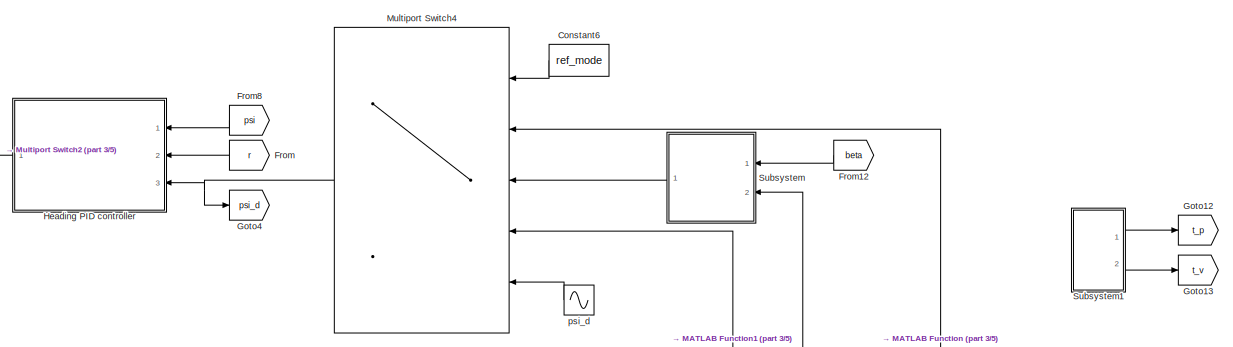
[diagram: root canvas - part 1/5, top center region]
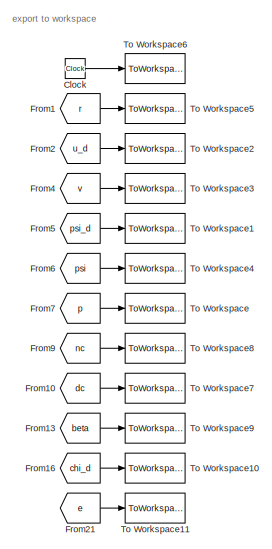
[diagram: root canvas - part 2/5, middle left region]
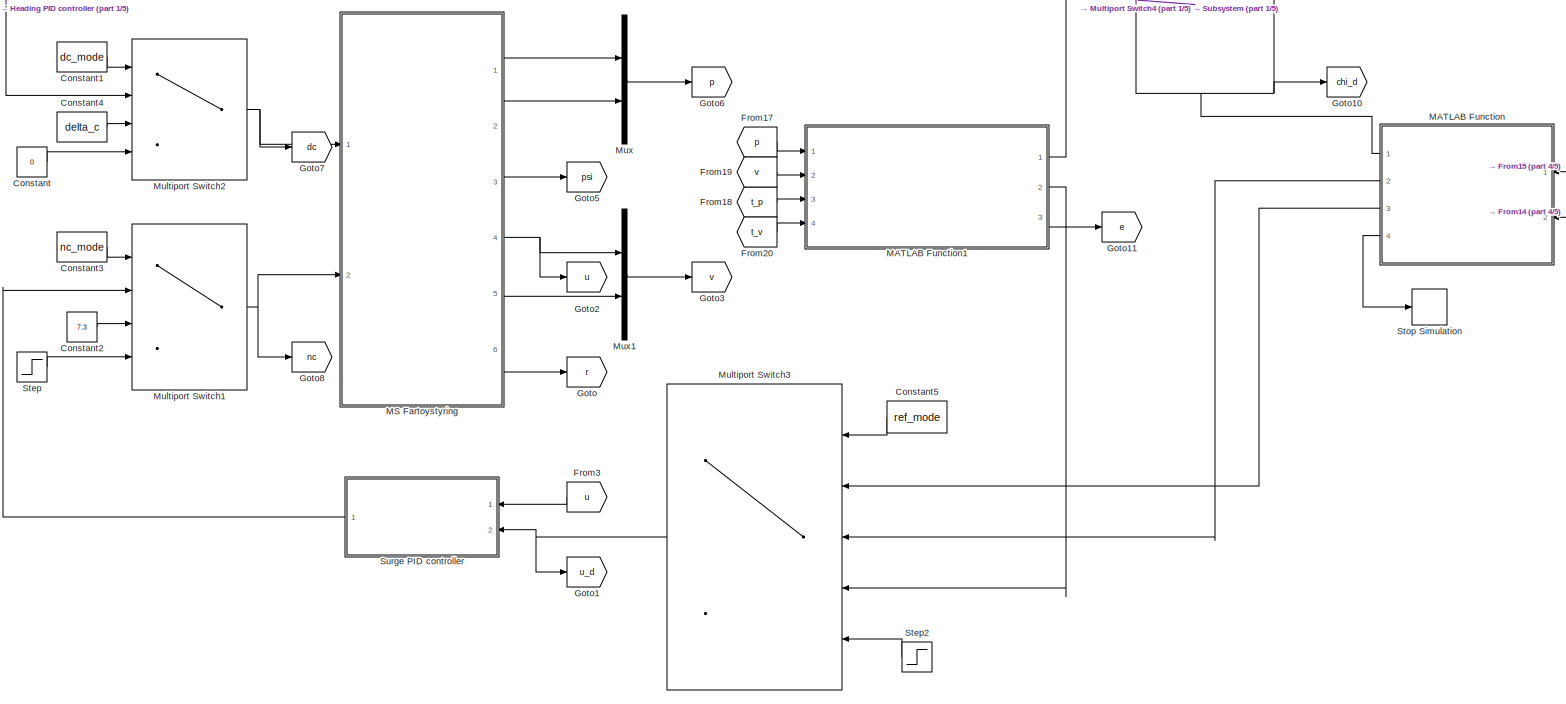
[diagram: root canvas - part 3/5, full width, middle band]
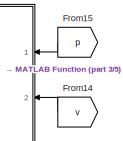
[diagram: root canvas - part 4/5, middle right region]
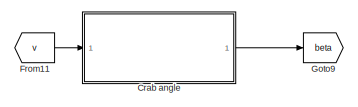
[diagram: root canvas - part 5/5, bottom center region]
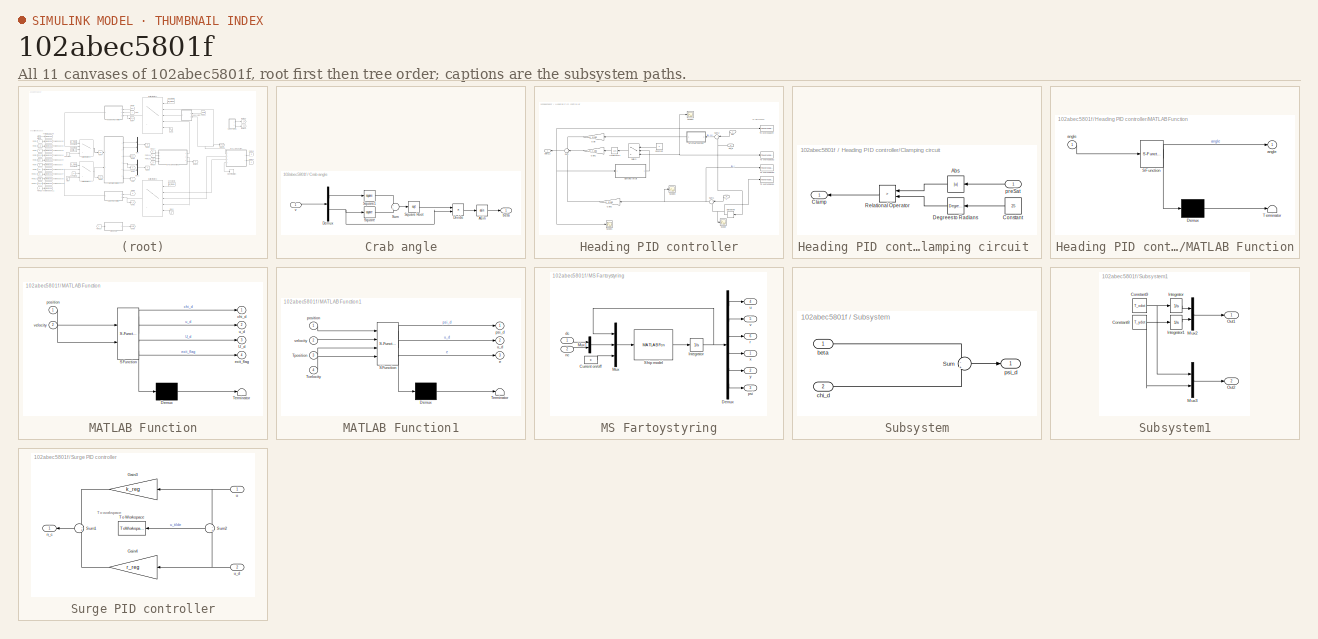
[diagram: thumbnail index - all 11 canvases of the model, root first then tree order]
MODEL slx_102abec5801f
KIND model
CONFIG AbsTol = auto
CONFIG EnableMultiTasking = on
CONFIG FixedStep = auto
CONFIG MaxStep = auto
CONFIG MinStep = auto
CONFIG RelTol = 1e-3
CONFIG SampleTimeConstraint = Unconstrained
CONFIG Solver = ode45
CONFIG SolverName = ode45
CONFIG StartTime = tstart
CONFIG StopTime = tstop
BLOCK [Clock] Clock
BLOCK [Constant] Constant
  Value = 0
BLOCK [Constant] Constant1
  Value = dc_mode
BLOCK [Constant] Constant2
  Value = 7.3
BLOCK [Constant] Constant3
  Value = nc_mode
BLOCK [Constant] Constant4
  Value = delta_c
BLOCK [Constant] Constant5
  Value = ref_mode
BLOCK [Constant] Constant6
  Value = ref_mode
BLOCK [SubSystem] Crab angle
  Ports = [1, 1]
  RequestExecContextInheritance = off
BLOCK [Trigonometry] Crab angle/Asin
  Operator = asin
  Ports = [1, 1]
BLOCK [Demux] Crab angle/Demux
  DisplayOption = bar
  Outputs = 2
  Ports = [1, 2]
BLOCK [Product] Crab angle/Divide
  InputSameDT = off
  Inputs = /*
  OutDataTypeStr = Inherit: Inherit via internal rule
  Ports = [2, 1]
  RndMeth = Floor
  SaturateOnIntegerOverflow = off
BLOCK [Math] Crab angle/Square
  Operator = square
  Ports = [1, 1]
BLOCK [Sqrt] Crab angle/Square Root
BLOCK [Math] Crab angle/Square1
  Operator = square
  Ports = [1, 1]
BLOCK [Sum] Crab angle/Sum
  IconShape = round
  InputSameDT = off
  Inputs = +|+
  OutDataTypeStr = Inherit: Inherit via internal rule
  Ports = [2, 1]
  SaturateOnIntegerOverflow = off
BLOCK [Outport] Crab angle/beta 
  IconDisplay = Port number
BLOCK [Inport] Crab angle/v
  IconDisplay = Port number
BLOCK [From] From
  GotoTag = r
BLOCK [From] From1
  GotoTag = r
BLOCK [From] From10
  GotoTag = dc
BLOCK [From] From11
  GotoTag = v
BLOCK [From] From12
  GotoTag = beta
BLOCK [From] From13
  GotoTag = beta
BLOCK [From] From14
  GotoTag = v
BLOCK [From] From15
  GotoTag = p
BLOCK [From] From16
  GotoTag = chi_d
BLOCK [From] From17
  GotoTag = p
BLOCK [From] From18
  GotoTag = t_p
BLOCK [From] From19
  GotoTag = v
BLOCK [From] From2
  GotoTag = u_d
BLOCK [From] From20
  GotoTag = t_v
BLOCK [From] From21
  GotoTag = e
BLOCK [From] From3
  GotoTag = u
BLOCK [From] From4
  GotoTag = v
BLOCK [From] From5
  GotoTag = psi_d
BLOCK [From] From6
  GotoTag = psi
BLOCK [From] From7
  GotoTag = p
BLOCK [From] From8
  GotoTag = psi
BLOCK [From] From9
  GotoTag = nc
BLOCK [Goto] Goto
  GotoTag = r
BLOCK [Goto] Goto1
  GotoTag = u_d
BLOCK [Goto] Goto10
  GotoTag = chi_d
BLOCK [Goto] Goto11
  GotoTag = e
BLOCK [Goto] Goto12
  GotoTag = t_p
BLOCK [Goto] Goto13
  GotoTag = t_v
BLOCK [Goto] Goto2
  GotoTag = u
BLOCK [Goto] Goto3
  GotoTag = v
BLOCK [Goto] Goto4
  GotoTag = psi_d
BLOCK [Goto] Goto5
  GotoTag = psi
BLOCK [Goto] Goto6
  GotoTag = p
BLOCK [Goto] Goto7
  GotoTag = dc
BLOCK [Goto] Goto8
  GotoTag = nc
BLOCK [Goto] Goto9
  GotoTag = beta
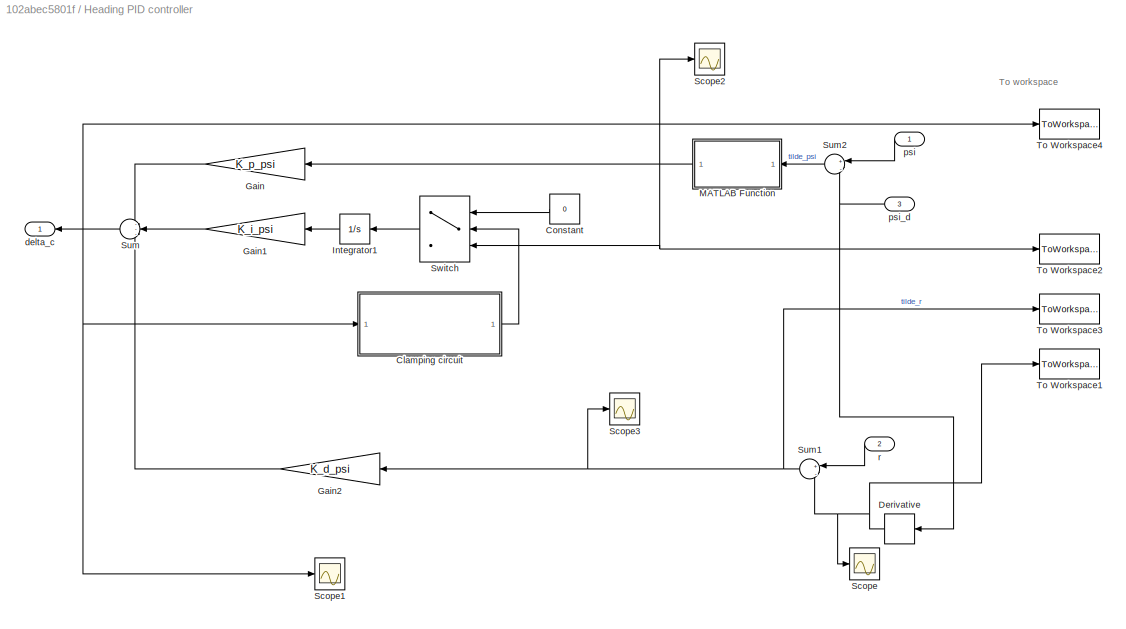
BLOCK [SubSystem] Heading PID controller
  Ports = [3, 1]
  RequestExecContextInheritance = off
BLOCK [SubSystem] Heading PID controller/Clamping circuit 
  Ports = [1, 1]
  RequestExecContextInheritance = off
BLOCK [Abs] Heading PID controller/Clamping circuit /Abs
  SaturateOnIntegerOverflow = off
BLOCK [Outport] Heading PID controller/Clamping circuit /Clamp
  IconDisplay = Port number
BLOCK [Constant] Heading PID controller/Clamping circuit /Constant
  Value = 25
BLOCK [Reference] Heading PID controller/Clamping circuit /Degrees to Radians  REF=simulink_extras/Transformations/Degrees to
Radians
  Ports = [1, 1]
  SourceBlock = simulink_extras/Transformations/Degrees to\nRadians
  SourceProductBaseCode = SL
  SourceProductName = Simulink
  SourceType = DegreesToRadians
BLOCK [RelationalOperator] Heading PID controller/Clamping circuit /Relational Operator
  InputSameDT = off
  Operator = >
  OutDataTypeStr = boolean
  Ports = [2, 1]
  RndMeth = Simplest
  ZeroCross = off
BLOCK [Inport] Heading PID controller/Clamping circuit /preSat
  IconDisplay = Port number
BLOCK [Constant] Heading PID controller/Constant
  Value = 0
BLOCK [Derivative] Heading PID controller/Derivative
BLOCK [Gain] Heading PID controller/Gain
  Gain = K_p_psi
  OutDataTypeStr = Inherit: Inherit via internal rule
  ParamDataTypeStr = Inherit: Inherit via internal rule
  SaturateOnIntegerOverflow = off
BLOCK [Gain] Heading PID controller/Gain1
  Gain = K_i_psi
  OutDataTypeStr = Inherit: Inherit via internal rule
  ParamDataTypeStr = Inherit: Inherit via internal rule
  SaturateOnIntegerOverflow = off
BLOCK [Gain] Heading PID controller/Gain2
  Gain = K_d_psi
  OutDataTypeStr = Inherit: Inherit via internal rule
  ParamDataTypeStr = Inherit: Inherit via internal rule
  SaturateOnIntegerOverflow = off
BLOCK [Integrator] Heading PID controller/Integrator1
  Ports = [1, 1]
BLOCK [SubSystem] Heading PID controller/MATLAB Function
  ErrorFcn = Stateflow.Translate.translate
  PermitHierarchicalResolution = ExplicitOnly
  Ports = [1, 1]
  RequestExecContextInheritance = off
  SFBlockType = MATLAB Function
  TreatAsAtomicUnit = on
BLOCK [Demux] Heading PID controller/MATLAB Function/ Demux 
  Outputs = 1
  Ports = [1, 1]
BLOCK [S-Function] Heading PID controller/MATLAB Function/ SFunction 
  EnableBusSupport = on
  FunctionName = sf_sfun
  PortCounts = [1 2]
  Ports = [1, 2]
  SFcnIsStateOwnerBlock = off
  SFunctionDeploymentMode = off
  Tag = Stateflow S-Function MSFartoystyring 1
BLOCK [Terminator] Heading PID controller/MATLAB Function/ Terminator 
BLOCK [Outport] Heading PID controller/MATLAB Function/angle
  IconDisplay = Port number
BLOCK [Inport] Heading PID controller/MATLAB Function/angle 
  IconDisplay = Port number
BLOCK [Scope] Heading PID controller/Scope
  Floating = off
  NumInputPorts = 1
  Ports = [1]
  ScopeSpecificationString = Simulink.scopes.TimeScopeBlockCfg('CurrentConfiguration', extmgr.ConfigurationSet(extmgr.Configuration('Core','General UI',true),extmgr.Configuration('Core','Source UI',true),extmgr.Configuration('Sources','WiredSimulink',true,'DataLoggingVariableName','ScopeData3'),extmgr.Configuration('Visuals','Time Domain',true,'SerializedDisplays',{struct('MinYLimReal','-1.00000','MaxYLimReal','1.00000','YLab...<+1369ch>
BLOCK [Scope] Heading PID controller/Scope1
  Floating = off
  NumInputPorts = 1
  Ports = [1]
  ScopeSpecificationString = Simulink.scopes.TimeScopeBlockCfg('CurrentConfiguration', extmgr.ConfigurationSet(extmgr.Configuration('Core','General UI',true),extmgr.Configuration('Core','Source UI',true),extmgr.Configuration('Sources','WiredSimulink',true,'DataLoggingVariableName','ScopeData4'),extmgr.Configuration('Visuals','Time Domain',true,'SerializedDisplays',{struct('MinYLimReal','-1830.82116','MaxYLimReal','9977.38918'...<+1384ch>
BLOCK [Scope] Heading PID controller/Scope2
  Floating = off
  NumInputPorts = 1
  Ports = [1]
  ScopeSpecificationString = Simulink.scopes.TimeScopeBlockCfg('CurrentConfiguration', extmgr.ConfigurationSet(extmgr.Configuration('Core','General UI',true),extmgr.Configuration('Core','Source UI',true),extmgr.Configuration('Sources','WiredSimulink',true,'DataLoggingVariableName','ScopeData5'),extmgr.Configuration('Visuals','Time Domain',true,'SerializedDisplays',{struct('MinYLimReal','-0.04776','MaxYLimReal','0.0218','YLabe...<+1385ch>
BLOCK [Scope] Heading PID controller/Scope3
  Floating = off
  NumInputPorts = 1
  Ports = [1]
  ScopeSpecificationString = Simulink.scopes.TimeScopeBlockCfg('CurrentConfiguration', extmgr.ConfigurationSet(extmgr.Configuration('Core','General UI',true),extmgr.Configuration('Core','Source UI',true),extmgr.Configuration('Sources','WiredSimulink',true,'DataLoggingVariableName','ScopeData6'),extmgr.Configuration('Visuals','Time Domain',true,'SerializedDisplays',{struct('MinYLimReal','-0.00173','MaxYLimReal','0.00171','YLab...<+1385ch>
BLOCK [Sum] Heading PID controller/Sum
  IconShape = round
  InputSameDT = off
  Inputs = ---
  OutDataTypeStr = Inherit: Inherit via internal rule
  Ports = [3, 1]
  SaturateOnIntegerOverflow = off
BLOCK [Sum] Heading PID controller/Sum1
  IconShape = round
  InputSameDT = off
  Inputs = +|-
  OutDataTypeStr = Inherit: Inherit via internal rule
  Ports = [2, 1]
  SaturateOnIntegerOverflow = off
BLOCK [Sum] Heading PID controller/Sum2
  IconShape = round
  InputSameDT = off
  Inputs = +|-
  OutDataTypeStr = Inherit: Inherit via internal rule
  Ports = [2, 1]
  SaturateOnIntegerOverflow = off
BLOCK [Switch] Heading PID controller/Switch
  Criteria = u2 > Threshold
  InputSameDT = off
  SaturateOnIntegerOverflow = off
BLOCK [ToWorkspace] Heading PID controller/To Workspace1
  FixptAsFi = on
  MaxDataPoints = inf
  Ports = [1]
  SampleTime = tsamp
  VariableName = r_d
BLOCK [ToWorkspace] Heading PID controller/To Workspace2
  FixptAsFi = on
  MaxDataPoints = inf
  Ports = [1]
  SampleTime = tsamp
  VariableName = tilde_psi
BLOCK [ToWorkspace] Heading PID controller/To Workspace3
  FixptAsFi = on
  MaxDataPoints = inf
  Ports = [1]
  SampleTime = tsamp
  VariableName = tilde_r
BLOCK [ToWorkspace] Heading PID controller/To Workspace4
  FixptAsFi = on
  MaxDataPoints = inf
  Ports = [1]
  SampleTime = tsamp
  VariableName = delta_c_PID
BLOCK [Outport] Heading PID controller/delta_c
  IconDisplay = Port number
BLOCK [Inport] Heading PID controller/psi
  IconDisplay = Port number
BLOCK [Inport] Heading PID controller/psi_d
  IconDisplay = Port number
  Port = 3
BLOCK [Inport] Heading PID controller/r
  IconDisplay = Port number
  Port = 2
BLOCK [SubSystem] MATLAB Function
  ErrorFcn = Stateflow.Translate.translate
  PermitHierarchicalResolution = ExplicitOnly
  Ports = [2, 4]
  RequestExecContextInheritance = off
  SFBlockType = MATLAB Function
  SystemSampleTime = 0.1
  TreatAsAtomicUnit = on
BLOCK [Demux] MATLAB Function/ Demux 
  Outputs = 1
  Ports = [1, 1]
BLOCK [S-Function] MATLAB Function/ SFunction 
  EnableBusSupport = on
  FunctionName = sf_sfun
  PortCounts = [2 5]
  Ports = [2, 5]
  SFcnIsStateOwnerBlock = off
  SFunctionDeploymentMode = off
  Tag = Stateflow S-Function MSFartoystyring 2
BLOCK [Terminator] MATLAB Function/ Terminator 
BLOCK [Outport] MATLAB Function/U_d
  IconDisplay = Port number
  Port = 3
BLOCK [Outport] MATLAB Function/chi_d
  IconDisplay = Port number
BLOCK [Outport] MATLAB Function/exit_flag
  IconDisplay = Port number
  Port = 4
BLOCK [Inport] MATLAB Function/position
  IconDisplay = Port number
BLOCK [Outport] MATLAB Function/u_d
  IconDisplay = Port number
  Port = 2
BLOCK [Inport] MATLAB Function/velocity
  IconDisplay = Port number
  Port = 2
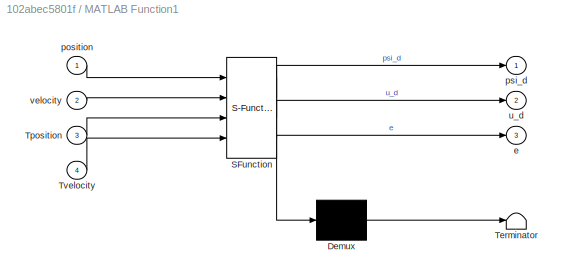
BLOCK [SubSystem] MATLAB Function1
  ErrorFcn = Stateflow.Translate.translate
  PermitHierarchicalResolution = ExplicitOnly
  Ports = [4, 3]
  RequestExecContextInheritance = off
  SFBlockType = MATLAB Function
  TreatAsAtomicUnit = on
BLOCK [Demux] MATLAB Function1/ Demux 
  Outputs = 1
  Ports = [1, 1]
BLOCK [S-Function] MATLAB Function1/ SFunction 
  EnableBusSupport = on
  FunctionName = sf_sfun
  PortCounts = [4 4]
  Ports = [4, 4]
  SFcnIsStateOwnerBlock = off
  SFunctionDeploymentMode = off
  Tag = Stateflow S-Function MSFartoystyring 3
BLOCK [Terminator] MATLAB Function1/ Terminator 
BLOCK [Inport] MATLAB Function1/Tposition
  IconDisplay = Port number
  Port = 3
BLOCK [Inport] MATLAB Function1/Tvelocity
  IconDisplay = Port number
  Port = 4
BLOCK [Outport] MATLAB Function1/e
  IconDisplay = Port number
  Port = 3
BLOCK [Inport] MATLAB Function1/position
  IconDisplay = Port number
BLOCK [Outport] MATLAB Function1/psi_d
  IconDisplay = Port number
BLOCK [Outport] MATLAB Function1/u_d
  IconDisplay = Port number
  Port = 2
BLOCK [Inport] MATLAB Function1/velocity
  IconDisplay = Port number
  Port = 2
BLOCK [SubSystem] MS Fartoystyring
  Ports = [2, 6]
  RequestExecContextInheritance = off
BLOCK [Constant] MS Fartoystyring/Current on//off
  Value = c
BLOCK [Demux] MS Fartoystyring/Demux
  DisplayOption = bar
  Outputs = 6
  Ports = [1, 6]
BLOCK [Integrator] MS Fartoystyring/Integrator
  InitialCondition = [u0 v0 r0 x0 y0 psi0]'
  Ports = [1, 1]
BLOCK [Mux] MS Fartoystyring/Mux
  DisplayOption = bar
  Inputs = 3
  Ports = [3, 1]
BLOCK [Mux] MS Fartoystyring/Mux1
  DisplayOption = bar
  Inputs = 2
  Ports = [2, 1]
BLOCK [MATLABFcn] MS Fartoystyring/Ship model
  MATLABFcn = msfartoystyring(u(1:6), u(7:8), u(9))
  OutputDimensions = 6
  Ports = [1, 1]
BLOCK [Inport] MS Fartoystyring/dc
  IconDisplay = Port number
BLOCK [Inport] MS Fartoystyring/nc
  IconDisplay = Port number
  Port = 2
BLOCK [Outport] MS Fartoystyring/psi
  IconDisplay = Port number
  Port = 3
BLOCK [Outport] MS Fartoystyring/r
  IconDisplay = Port number
  Port = 6
BLOCK [Outport] MS Fartoystyring/u
  IconDisplay = Port number
  Port = 4
BLOCK [Outport] MS Fartoystyring/v
  IconDisplay = Port number
  Port = 5
BLOCK [Outport] MS Fartoystyring/x
  IconDisplay = Port number
BLOCK [Outport] MS Fartoystyring/y
  IconDisplay = Port number
  Port = 2
BLOCK [MultiPortSwitch] Multiport Switch1
  DataPortIndices = {NC_MODE.CONTROLLER, NC_MODE.CONSTANT, NC_MODE.STEP}
  DataPortOrder = Specify indices
  DiagnosticForDefault = None
  InputSameDT = off
  Ports = [4, 1]
  SaturateOnIntegerOverflow = off
BLOCK [MultiPortSwitch] Multiport Switch2
  DataPortIndices = {DC_MODE.CONTROLLER, DC_MODE.CONSTANT, DC_MODE.ZERO}
  DataPortOrder = Specify indices
  InputSameDT = off
  Ports = [4, 1]
  SaturateOnIntegerOverflow = off
BLOCK [MultiPortSwitch] Multiport Switch3
  DataPortIndices = {REF_MODE.PATH_FOLLOWING_1, REF_MODE.PATH_FOLLOWING_2, REF_MODE.TARGET_TRACKING, REF_MODE.MANUAL_REF}
  DataPortOrder = Specify indices
  DiagnosticForDefault = None
  InputSameDT = off
  Ports = [5, 1]
  SaturateOnIntegerOverflow = off
BLOCK [MultiPortSwitch] Multiport Switch4
  DataPortIndices = {REF_MODE.PATH_FOLLOWING_1, REF_MODE.PATH_FOLLOWING_2, REF_MODE.TARGET_TRACKING, REF_MODE.MANUAL_REF}
  DataPortOrder = Specify indices
  DiagnosticForDefault = None
  InputSameDT = off
  Ports = [5, 1]
  SaturateOnIntegerOverflow = off
BLOCK [Mux] Mux
  DisplayOption = bar
  Inputs = 2
  Ports = [2, 1]
BLOCK [Mux] Mux1
  DisplayOption = bar
  Inputs = 2
  Ports = [2, 1]
BLOCK [Step] Step
  After = nc_step_final
  Before = nc_step_start
  SampleTime = 0
  Time = nc_step_time
BLOCK [Step] Step2
  After = u_d_step_final
  Before = u_d_step_start
  SampleTime = 0
  Time = u_d_step_time
BLOCK [Stop] Stop Simulation
BLOCK [SubSystem] Subsystem
  Ports = [2, 1]
  RequestExecContextInheritance = off
BLOCK [Sum] Subsystem/Sum
  IconShape = round
  InputSameDT = off
  Inputs = -|+
  OutDataTypeStr = Inherit: Inherit via internal rule
  Ports = [2, 1]
  SaturateOnIntegerOverflow = off
BLOCK [Inport] Subsystem/beta
  IconDisplay = Port number
BLOCK [Inport] Subsystem/chi_d
  IconDisplay = Port number
  Port = 2
BLOCK [Outport] Subsystem/psi_d 
  IconDisplay = Port number
BLOCK [SubSystem] Subsystem1
  Ports = [0, 2]
  RequestExecContextInheritance = off
BLOCK [Constant] Subsystem1/Constant8
  Value = T_ydot
BLOCK [Constant] Subsystem1/Constant9
  Value = T_xdot
BLOCK [Integrator] Subsystem1/Integrator
  Ports = [1, 1]
BLOCK [Integrator] Subsystem1/Integrator1
  Ports = [1, 1]
BLOCK [Mux] Subsystem1/Mux2
  DisplayOption = bar
  Inputs = 2
  Ports = [2, 1]
BLOCK [Mux] Subsystem1/Mux3
  DisplayOption = bar
  Inputs = 2
  Ports = [2, 1]
BLOCK [Outport] Subsystem1/Out1
  IconDisplay = Port number
BLOCK [Outport] Subsystem1/Out2
  IconDisplay = Port number
  Port = 2
BLOCK [SubSystem] Surge PID controller
  Ports = [2, 1]
  RequestExecContextInheritance = off
BLOCK [Gain] Surge PID controller/Gain3
  Gain = k_reg
  OutDataTypeStr = Inherit: Inherit via internal rule
  ParamDataTypeStr = Inherit: Inherit via internal rule
  SaturateOnIntegerOverflow = off
BLOCK [Gain] Surge PID controller/Gain4
  Gain = r_reg
  OutDataTypeStr = Inherit: Inherit via internal rule
  ParamDataTypeStr = Inherit: Inherit via internal rule
  SaturateOnIntegerOverflow = off
BLOCK [Sum] Surge PID controller/Sum1
  IconShape = round
  InputSameDT = off
  Inputs = -+
  OutDataTypeStr = Inherit: Inherit via internal rule
  Ports = [2, 1]
  SaturateOnIntegerOverflow = off
BLOCK [Sum] Surge PID controller/Sum2
  IconShape = round
  InputSameDT = off
  Inputs = -|+
  OutDataTypeStr = Inherit: Inherit via internal rule
  Ports = [2, 1]
  SaturateOnIntegerOverflow = off
BLOCK [ToWorkspace] Surge PID controller/To Workspace
  FixptAsFi = on
  MaxDataPoints = inf
  Ports = [1]
  SampleTime = tsamp
  VariableName = u_tilde
BLOCK [Outport] Surge PID controller/n_c
  IconDisplay = Port number
BLOCK [Inport] Surge PID controller/u
  IconDisplay = Port number
BLOCK [Inport] Surge PID controller/u_d
  IconDisplay = Port number
  Port = 2
BLOCK [ToWorkspace] To Workspace
  MaxDataPoints = inf
  Ports = [1]
  SampleTime = tsamp
  VariableName = p
BLOCK [ToWorkspace] To Workspace1
  MaxDataPoints = inf
  Ports = [1]
  SampleTime = tsamp
  VariableName = psi_d
BLOCK [ToWorkspace] To Workspace10
  MaxDataPoints = inf
  Ports = [1]
  SampleTime = tsamp
  VariableName = chi_d
BLOCK [ToWorkspace] To Workspace11
  MaxDataPoints = inf
  Ports = [1]
  SampleTime = tsamp
  VariableName = e
BLOCK [ToWorkspace] To Workspace2
  MaxDataPoints = inf
  Ports = [1]
  SampleTime = tsamp
  VariableName = u_d
BLOCK [ToWorkspace] To Workspace3
  MaxDataPoints = inf
  Ports = [1]
  SampleTime = tsamp
  VariableName = v
BLOCK [ToWorkspace] To Workspace4
  MaxDataPoints = inf
  Ports = [1]
  SampleTime = tsamp
  VariableName = psi
BLOCK [ToWorkspace] To Workspace5
  MaxDataPoints = inf
  Ports = [1]
  SampleTime = tsamp
  VariableName = r
BLOCK [ToWorkspace] To Workspace6
  MaxDataPoints = inf
  Ports = [1]
  SampleTime = tsamp
  VariableName = t
BLOCK [ToWorkspace] To Workspace7
  MaxDataPoints = inf
  Ports = [1]
  SampleTime = tsamp
  VariableName = dc
BLOCK [ToWorkspace] To Workspace8
  MaxDataPoints = inf
  Ports = [1]
  SampleTime = tsamp
  VariableName = nc
BLOCK [ToWorkspace] To Workspace9
  MaxDataPoints = inf
  Ports = [1]
  SampleTime = tsamp
  VariableName = beta
BLOCK [Sin] psi_d
  Amplitude = psi_d_amp
  Bias = psi_d_bias
  Frequency = psi_d_freq
  Ports = [0, 1]
  SampleTime = 0
ANNOTATION (root): export to workspace
ANNOTATION Heading PID controller: To workspace
ANNOTATION Surge PID controller: To workspace
LINE Clock:1 -> To Workspace6:1
LINE Constant1:1 -> Multiport Switch2:1
LINE Constant2:1 -> Multiport Switch1:3
LINE Constant3:1 -> Multiport Switch1:1
LINE Constant4:1 -> Multiport Switch2:3
LINE Constant5:1 -> Multiport Switch3:1
LINE Constant6:1 -> Multiport Switch4:1
LINE Constant:1 -> Multiport Switch2:4
LINE Crab angle/Asin:1 -> Crab angle/beta :1
LINE Crab angle/Demux:1 -> Crab angle/Square1:1
NET Crab angle/Demux:2 -> Crab angle/Divide:2, Crab angle/Square:1
LINE Crab angle/Divide:1 -> Crab angle/Asin:1
LINE Crab angle/Square Root:1 -> Crab angle/Divide:1
LINE Crab angle/Square1:1 -> Crab angle/Sum:1
LINE Crab angle/Square:1 -> Crab angle/Sum:2
LINE Crab angle/Sum:1 -> Crab angle/Square Root:1
LINE Crab angle/v:1 -> Crab angle/Demux:1
LINE Crab angle:1 -> Goto9:1
LINE From10:1 -> To Workspace7:1
LINE From11:1 -> Crab angle:1
LINE From12:1 -> Subsystem:1
LINE From13:1 -> To Workspace9:1
LINE From14:1 -> MATLAB Function:2
LINE From15:1 -> MATLAB Function:1
LINE From16:1 -> To Workspace10:1
LINE From17:1 -> MATLAB Function1:1
LINE From18:1 -> MATLAB Function1:3
LINE From19:1 -> MATLAB Function1:2
LINE From1:1 -> To Workspace5:1
LINE From20:1 -> MATLAB Function1:4
LINE From21:1 -> To Workspace11:1
LINE From2:1 -> To Workspace2:1
LINE From3:1 -> Surge PID controller:1
LINE From4:1 -> To Workspace3:1
LINE From5:1 -> To Workspace1:1
LINE From6:1 -> To Workspace4:1
LINE From7:1 -> To Workspace:1
LINE From8:1 -> Heading PID controller:1
LINE From9:1 -> To Workspace8:1
LINE From:1 -> Heading PID controller:2
LINE Heading PID controller/Clamping circuit /Abs:1 -> Heading PID controller/Clamping circuit /Relational Operator:1
LINE Heading PID controller/Clamping circuit /Constant:1 -> Heading PID controller/Clamping circuit /Degrees to Radians:1
LINE Heading PID controller/Clamping circuit /Degrees to Radians:1 -> Heading PID controller/Clamping circuit /Relational Operator:2
LINE Heading PID controller/Clamping circuit /Relational Operator:1 -> Heading PID controller/Clamping circuit /Clamp:1
LINE Heading PID controller/Clamping circuit /preSat:1 -> Heading PID controller/Clamping circuit /Abs:1
LINE Heading PID controller/Clamping circuit :1 -> Heading PID controller/Switch:2
LINE Heading PID controller/Constant:1 -> Heading PID controller/Switch:1
NET Heading PID controller/Derivative:1 -> Heading PID controller/Scope:1, Heading PID controller/Sum1:2, Heading PID controller/To Workspace1:1
LINE Heading PID controller/Gain1:1 -> Heading PID controller/Sum:2
LINE Heading PID controller/Gain2:1 -> Heading PID controller/Sum:3
LINE Heading PID controller/Gain:1 -> Heading PID controller/Sum:1
LINE Heading PID controller/Integrator1:1 -> Heading PID controller/Gain1:1
NET Heading PID controller/MATLAB Function:1 -> Heading PID controller/Gain:1, Heading PID controller/Scope2:1, Heading PID controller/Switch:3, Heading PID controller/To Workspace2:1
NET Heading PID controller/Sum1:1 -> Heading PID controller/Gain2:1, Heading PID controller/Scope3:1, Heading PID controller/To Workspace3:1
LINE Heading PID controller/Sum2:1 -> Heading PID controller/MATLAB Function:1
NET Heading PID controller/Sum:1 -> Heading PID controller/Clamping circuit :1, Heading PID controller/Scope1:1, Heading PID controller/To Workspace4:1, Heading PID controller/delta_c:1
LINE Heading PID controller/Switch:1 -> Heading PID controller/Integrator1:1
LINE Heading PID controller/psi:1 -> Heading PID controller/Sum2:1
NET Heading PID controller/psi_d:1 -> Heading PID controller/Derivative:1, Heading PID controller/Sum2:2
LINE Heading PID controller/r:1 -> Heading PID controller/Sum1:1
LINE Heading PID controller:1 -> Multiport Switch2:2
LINE MATLAB Function1:1 -> Multiport Switch4:4
LINE MATLAB Function1:2 -> Multiport Switch3:4
LINE MATLAB Function1:3 -> Goto11:1
NET MATLAB Function:1 -> Goto10:1, Multiport Switch4:2, Subsystem:2
LINE MATLAB Function:2 -> Multiport Switch3:3
LINE MATLAB Function:3 -> Multiport Switch3:2
LINE MATLAB Function:4 -> Stop Simulation:1
LINE MS Fartoystyring/Current on//off:1 -> MS Fartoystyring/Mux:3
LINE MS Fartoystyring/Demux:1 -> MS Fartoystyring/u:1
LINE MS Fartoystyring/Demux:2 -> MS Fartoystyring/v:1
LINE MS Fartoystyring/Demux:3 -> MS Fartoystyring/r:1
LINE MS Fartoystyring/Demux:4 -> MS Fartoystyring/x:1
LINE MS Fartoystyring/Demux:5 -> MS Fartoystyring/y:1
LINE MS Fartoystyring/Demux:6 -> MS Fartoystyring/psi:1
NET MS Fartoystyring/Integrator:1 -> MS Fartoystyring/Demux:1, MS Fartoystyring/Mux:1
LINE MS Fartoystyring/Mux1:1 -> MS Fartoystyring/Mux:2
LINE MS Fartoystyring/Mux:1 -> MS Fartoystyring/Ship model:1
LINE MS Fartoystyring/Ship model:1 -> MS Fartoystyring/Integrator:1
LINE MS Fartoystyring/dc:1 -> MS Fartoystyring/Mux1:1
LINE MS Fartoystyring/nc:1 -> MS Fartoystyring/Mux1:2
LINE MS Fartoystyring:1 -> Mux:1
LINE MS Fartoystyring:2 -> Mux:2
LINE MS Fartoystyring:3 -> Goto5:1
NET MS Fartoystyring:4 -> Goto2:1, Mux1:1
LINE MS Fartoystyring:5 -> Mux1:2
LINE MS Fartoystyring:6 -> Goto:1
NET Multiport Switch1:1 -> Goto8:1, MS Fartoystyring:2
NET Multiport Switch2:1 -> Goto7:1, MS Fartoystyring:1
NET Multiport Switch3:1 -> Goto1:1, Surge PID controller:2
NET Multiport Switch4:1 -> Goto4:1, Heading PID controller:3
LINE Mux1:1 -> Goto3:1
LINE Mux:1 -> Goto6:1
LINE Step2:1 -> Multiport Switch3:5
LINE Step:1 -> Multiport Switch1:4
LINE Subsystem/Sum:1 -> Subsystem/psi_d :1
LINE Subsystem/beta:1 -> Subsystem/Sum:1
LINE Subsystem/chi_d:1 -> Subsystem/Sum:2
NET Subsystem1/Constant8:1 -> Subsystem1/Integrator1:1, Subsystem1/Mux3:2
NET Subsystem1/Constant9:1 -> Subsystem1/Integrator:1, Subsystem1/Mux3:1
LINE Subsystem1/Integrator1:1 -> Subsystem1/Mux2:2
LINE Subsystem1/Integrator:1 -> Subsystem1/Mux2:1
LINE Subsystem1/Mux2:1 -> Subsystem1/Out1:1
LINE Subsystem1/Mux3:1 -> Subsystem1/Out2:1
LINE Subsystem1:1 -> Goto12:1
LINE Subsystem1:2 -> Goto13:1
LINE Subsystem:1 -> Multiport Switch4:3
LINE Surge PID controller/Gain3:1 -> Surge PID controller/Sum1:1
LINE Surge PID controller/Gain4:1 -> Surge PID controller/Sum1:2
LINE Surge PID controller/Sum1:1 -> Surge PID controller/n_c:1
LINE Surge PID controller/Sum2:1 -> Surge PID controller/To Workspace:1
NET Surge PID controller/u:1 -> Surge PID controller/Gain3:1, Surge PID controller/Sum2:1
NET Surge PID controller/u_d:1 -> Surge PID controller/Gain4:1, Surge PID controller/Sum2:2
LINE Surge PID controller:1 -> Multiport Switch1:2
LINE psi_d:1 -> Multiport Switch4:5
note: NET lines group one-source signal fan-out (src -> all destinations, sorted); 1:1 wires keep LINE
CHART Heading PID controller/MATLAB Function states=1 transitions=1
  STATE_LABEL 'eML_blk_kernel()'
  STATE_LABEL 'SCRIPT:\nfunction angle = ssa(angle)\n% SSA is the "smallest signed angle" or the smallest difference between two\n% angles. Examples:\n%  \n% angle = ssa(angle,\'rad\') maps an angle in rad to the interval [-pi pi) \n% angle = ssa(angle,\'deg\') maps an angle in deg to the interval [-180, 180)\n%\n% For feedback control systems and state estimators used to control the \n% attitude of vehicles, the difference ...<+769ch>'
CHART MATLAB Function states=1 transitions=1
  STATE_LABEL 'eML_blk_kernel()'
  STATE_LABEL "SCRIPT:\nfunction [chi_d, u_d, U_d, exit_flag]= Lookahead_LOS_Guidance(position,velocity)\n\n% Initializing\npersistent init_flag n K_p S;\n\nif isempty(init_flag)\n    % Load waypoints\n    S           = load('WP.mat');\n    \n    % Define waypoint number, n\n    n           = 1;\n    \n    % Controller parameters\n    Delta       = 1000;\n    K_p         = 1/Delta;\n   \n    \n    init_flag   = 1;\nend\n\nexit_flag ...<+1217ch>"
CHART MATLAB Function1 states=1 transitions=1
  STATE_LABEL 'eML_blk_kernel()'
  STATE_LABEL "SCRIPT:\nfunction [psi_d, u_d, e]= TargetTracking_LOS_Guidance(position,velocity, Tposition, Tvelocity)\n\n\nS           = load('WP.mat');\n\n% Define variables\nx       = position(1);     % position x in NED\ny       = position(2);     % position y in NED\n\nu       = velocity(1);     % velocity u in BODY\nv       = velocity(2);     % velocity v in BODY\n\nTx       = Tposition(1);     % target position x in N...<+1150ch>"
